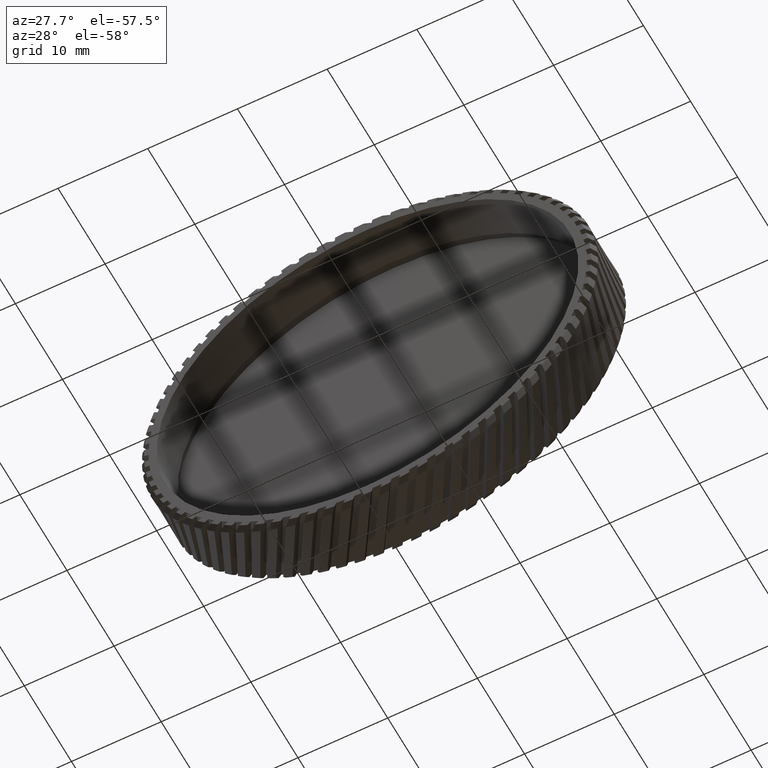
[diagram: clean part render]
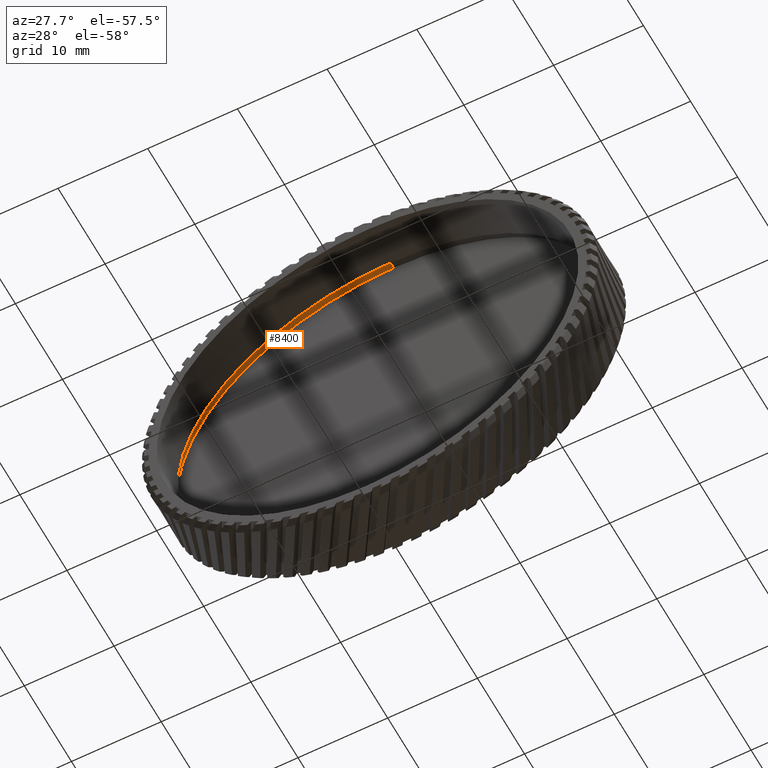
[diagram: same view with one face highlighted and labeled with its STEP entity id]
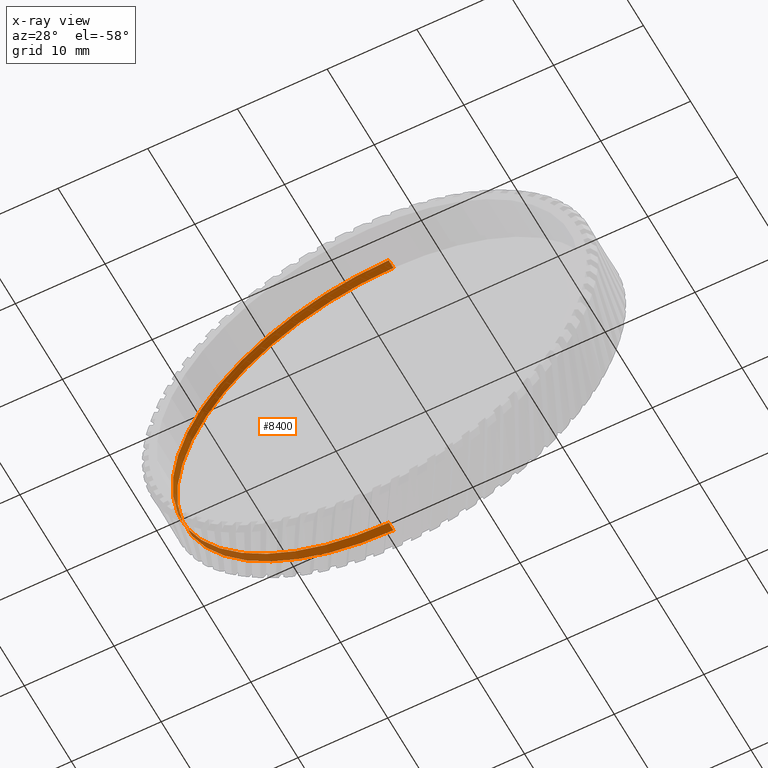
[diagram: x-ray of the same camera — body ghosted, the highlighted face saturated]
A machine part, auxiliary view. The second image highlights one B-rep face of the part: STEP entity #8400.
The next image is the same camera in x-ray: the body ghosted, the highlighted face saturated — about 2% of this face is hidden behind the body in this view.
In plain terms, the highlighted cylindrical surface (partial cylindrical patch) has radius 24.1 mm, axis along (-0, 1, -0).
Its self-contained STEP definition (entity closure, byte-faithful):
#769 = DIRECTION ( 'NONE',  ( -0.0000000000000000000, 1.000000000000000000, -0.0000000000000000000 ) ) ;
#1751 = LINE ( 'NONE', #13126, #4297 ) ;
#2040 = DIRECTION ( 'NONE',  ( -0.0000000000000000000, 1.000000000000000000, -0.0000000000000000000 ) ) ;
#2516 = FACE_OUTER_BOUND ( 'NONE', #5131, .T. ) ;
#3391 = CARTESIAN_POINT ( 'NONE',  ( 0.0000000000000000000, -7.830884482231917700, 0.0000000000000000000 ) ) ;
#4010 = CARTESIAN_POINT ( 'NONE',  ( 0.0000000000000000000, 46.02073106022621100, 24.10000000000000900 ) ) ;
#4096 = VECTOR ( 'NONE', #12547, 1000.000000000000000 ) ;
#4297 = VECTOR ( 'NONE', #2040, 1000.000000000000000 ) ;
#4404 = CARTESIAN_POINT ( 'NONE',  ( 0.0000000000000000000, -7.830884482231917700, 24.10000000000000900 ) ) ;
#4671 = ORIENTED_EDGE ( 'NONE', *, *, #10797, .T. ) ;
#4735 = VERTEX_POINT ( 'NONE', #14069 ) ;
#4838 = CIRCLE ( 'NONE', #8831, 24.10000000000000900 ) ;
#5131 = EDGE_LOOP ( 'NONE', ( #13392, #13443, #4671, #9303 ) ) ;
#5865 = DIRECTION ( 'NONE',  ( -0.0000000000000000000, 1.000000000000000000, -0.0000000000000000000 ) ) ;
#6478 = DIRECTION ( 'NONE',  ( -0.0000000000000000000, 1.000000000000000000, -0.0000000000000000000 ) ) ;
#7121 = AXIS2_PLACEMENT_3D ( 'NONE', #3391, #5865, #8350 ) ;
#7427 = LINE ( 'NONE', #4010, #4096 ) ;
#7630 = CIRCLE ( 'NONE', #7121, 24.10000000000000900 ) ;
#8031 = CYLINDRICAL_SURFACE ( 'NONE', #11240, 24.10000000000000900 ) ;
#8342 = EDGE_CURVE ( 'NONE', #4735, #11678, #7427, .T. ) ;
#8350 = DIRECTION ( 'NONE',  ( 0.0000000000000000000, 0.0000000000000000000, 1.000000000000000000 ) ) ;
#8400 = ADVANCED_FACE ( 'NONE', ( #2516 ), #8031, .F. ) ;
#8544 = EDGE_CURVE ( 'NONE', #10124, #10875, #1751, .T. ) ;
#8831 = AXIS2_PLACEMENT_3D ( 'NONE', #11912, #769, #14523 ) ;
#9040 = DIRECTION ( 'NONE',  ( 0.0000000000000000000, 0.0000000000000000000, 1.000000000000000000 ) ) ;
#9303 = ORIENTED_EDGE ( 'NONE', *, *, #8342, .F. ) ;
#9834 = CARTESIAN_POINT ( 'NONE',  ( 2.951398785945122000E-015, -7.830884482231917700, -24.10000000000000900 ) ) ;
#10124 = VERTEX_POINT ( 'NONE', #12379 ) ;
#10797 = EDGE_CURVE ( 'NONE', #10875, #11678, #7630, .T. ) ;
#10875 = VERTEX_POINT ( 'NONE', #9834 ) ;
#11240 = AXIS2_PLACEMENT_3D ( 'NONE', #11483, #6478, #9040 ) ;
#11483 = CARTESIAN_POINT ( 'NONE',  ( 0.0000000000000000000, 46.02073106022621100, 0.0000000000000000000 ) ) ;
#11678 = VERTEX_POINT ( 'NONE', #4404 ) ;
#11912 = CARTESIAN_POINT ( 'NONE',  ( 0.0000000000000000000, -8.830884482231917700, 0.0000000000000000000 ) ) ;
#12148 = EDGE_CURVE ( 'NONE', #10124, #4735, #4838, .T. ) ;
#12379 = CARTESIAN_POINT ( 'NONE',  ( 2.951398785945122000E-015, -8.830884482231917700, -24.10000000000000900 ) ) ;
#12547 = DIRECTION ( 'NONE',  ( -0.0000000000000000000, 1.000000000000000000, -0.0000000000000000000 ) ) ;
#13126 = CARTESIAN_POINT ( 'NONE',  ( 2.951398785945122000E-015, 46.02073106022621100, -24.10000000000000900 ) ) ;
#13392 = ORIENTED_EDGE ( 'NONE', *, *, #12148, .F. ) ;
#13443 = ORIENTED_EDGE ( 'NONE', *, *, #8544, .T. ) ;
#14069 = CARTESIAN_POINT ( 'NONE',  ( 0.0000000000000000000, -8.830884482231917700, 24.10000000000000900 ) ) ;
#14523 = DIRECTION ( 'NONE',  ( 0.0000000000000000000, 0.0000000000000000000, 1.000000000000000000 ) ) ;